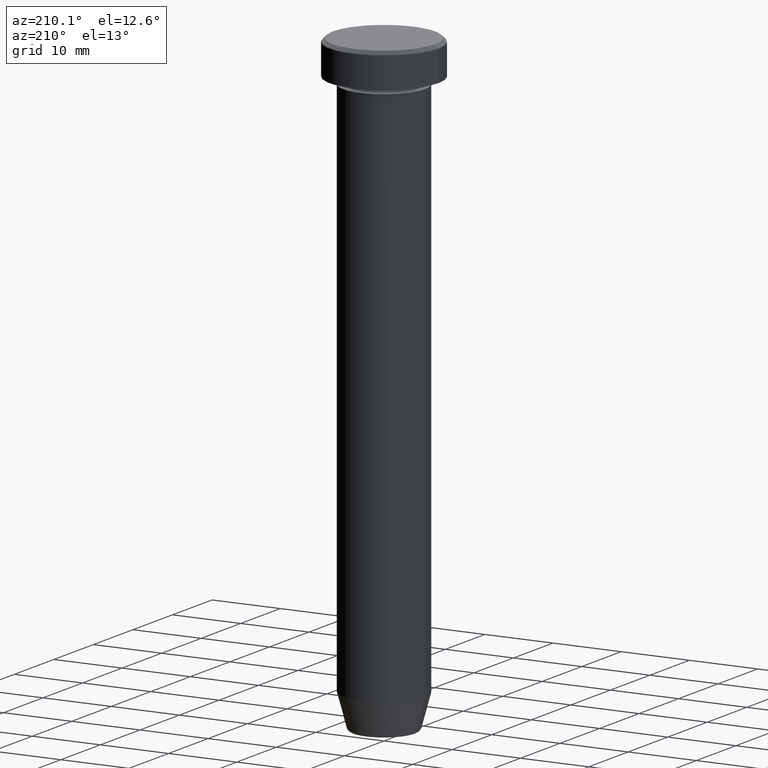
[diagram: clean part render]
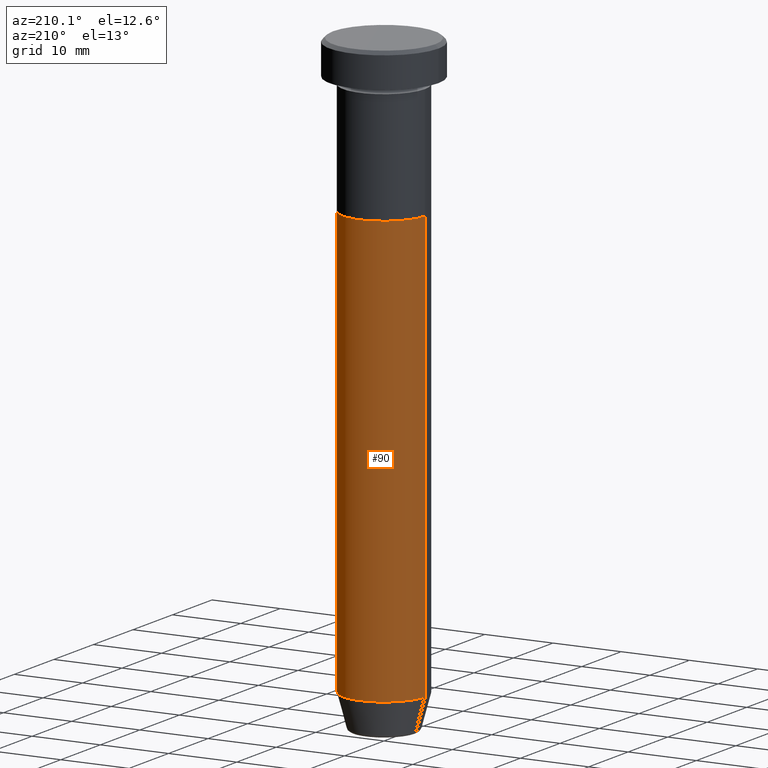
[diagram: same view with one face highlighted and labeled with its STEP entity id]
A machine part, auxiliary view. The second image highlights one B-rep face of the part: STEP entity #90.
In plain terms, the highlighted cylindrical surface (partial cylindrical patch) has radius 6 mm, axis along (-0, -0, 1).
Its self-contained STEP definition (entity closure, byte-faithful):
#11 = CIRCLE ( 'NONE', #172, 6.000000000000000000 ) ;
#13 = CARTESIAN_POINT ( 'NONE',  ( 0.000000000000000000, 0.000000000000000000, -84.99999999999998579 ) ) ;
#24 = CARTESIAN_POINT ( 'NONE',  ( -6.000000000000000000, 7.347880794884119736E-16, 0.000000000000000000 ) ) ;
#42 = EDGE_CURVE ( 'NONE', #567, #272, #519, .T. ) ;
#47 = DIRECTION ( 'NONE',  ( 1.000000000000000000, 0.000000000000000000, 0.000000000000000000 ) ) ;
#50 = CARTESIAN_POINT ( 'NONE',  ( 0.000000000000000000, 0.000000000000000000, -22.50000000000000000 ) ) ;
#56 = CARTESIAN_POINT ( 'NONE',  ( 6.000000000000000000, 0.000000000000000000, -22.50000000000000000 ) ) ;
#60 = DIRECTION ( 'NONE',  ( -0.000000000000000000, -0.000000000000000000, 1.000000000000000000 ) ) ;
#75 = VECTOR ( 'NONE', #215, 1000.000000000000000 ) ;
#85 = CARTESIAN_POINT ( 'NONE',  ( -6.000000000000000000, 7.347880794884119736E-16, -84.99999999999998579 ) ) ;
#87 = CARTESIAN_POINT ( 'NONE',  ( -6.000000000000000000, 7.347880794884119736E-16, -22.50000000000000000 ) ) ;
#88 = EDGE_LOOP ( 'NONE', ( #454, #398, #598, #265 ) ) ;
#90 = ADVANCED_FACE ( 'NONE', ( #213 ), #218, .T. ) ;
#122 = VERTEX_POINT ( 'NONE', #85 ) ;
#160 = EDGE_CURVE ( 'NONE', #122, #580, #222, .T. ) ;
#172 = AXIS2_PLACEMENT_3D ( 'NONE', #13, #60, #242 ) ;
#182 = VECTOR ( 'NONE', #203, 1000.000000000000000 ) ;
#203 = DIRECTION ( 'NONE',  ( -0.000000000000000000, -0.000000000000000000, 1.000000000000000000 ) ) ;
#213 = FACE_OUTER_BOUND ( 'NONE', #88, .T. ) ;
#215 = DIRECTION ( 'NONE',  ( -0.000000000000000000, -0.000000000000000000, 1.000000000000000000 ) ) ;
#218 = CYLINDRICAL_SURFACE ( 'NONE', #558, 6.000000000000000000 ) ;
#221 = AXIS2_PLACEMENT_3D ( 'NONE', #50, #463, #47 ) ;
#222 = LINE ( 'NONE', #24, #75 ) ;
#226 = CARTESIAN_POINT ( 'NONE',  ( 6.000000000000000000, 0.000000000000000000, -84.99999999999998579 ) ) ;
#242 = DIRECTION ( 'NONE',  ( 1.000000000000000000, 0.000000000000000000, 0.000000000000000000 ) ) ;
#265 = ORIENTED_EDGE ( 'NONE', *, *, #42, .F. ) ;
#272 = VERTEX_POINT ( 'NONE', #56 ) ;
#307 = DIRECTION ( 'NONE',  ( 1.000000000000000000, 0.000000000000000000, 0.000000000000000000 ) ) ;
#398 = ORIENTED_EDGE ( 'NONE', *, *, #160, .T. ) ;
#410 = CARTESIAN_POINT ( 'NONE',  ( 0.000000000000000000, 0.000000000000000000, 0.000000000000000000 ) ) ;
#454 = ORIENTED_EDGE ( 'NONE', *, *, #474, .T. ) ;
#463 = DIRECTION ( 'NONE',  ( -0.000000000000000000, -0.000000000000000000, 1.000000000000000000 ) ) ;
#472 = CARTESIAN_POINT ( 'NONE',  ( 6.000000000000000000, 0.000000000000000000, 0.000000000000000000 ) ) ;
#474 = EDGE_CURVE ( 'NONE', #567, #122, #11, .T. ) ;
#519 = LINE ( 'NONE', #472, #182 ) ;
#536 = EDGE_CURVE ( 'NONE', #272, #580, #552, .T. ) ;
#552 = CIRCLE ( 'NONE', #221, 6.000000000000000000 ) ;
#558 = AXIS2_PLACEMENT_3D ( 'NONE', #410, #576, #307 ) ;
#567 = VERTEX_POINT ( 'NONE', #226 ) ;
#576 = DIRECTION ( 'NONE',  ( -0.000000000000000000, -0.000000000000000000, 1.000000000000000000 ) ) ;
#580 = VERTEX_POINT ( 'NONE', #87 ) ;
#598 = ORIENTED_EDGE ( 'NONE', *, *, #536, .F. ) ;